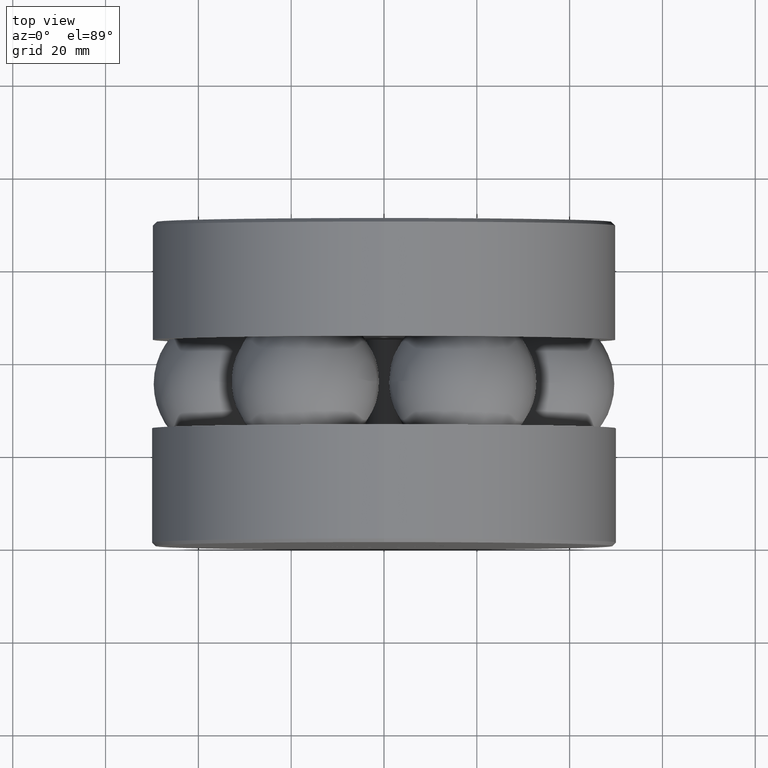
[diagram: clean part render]
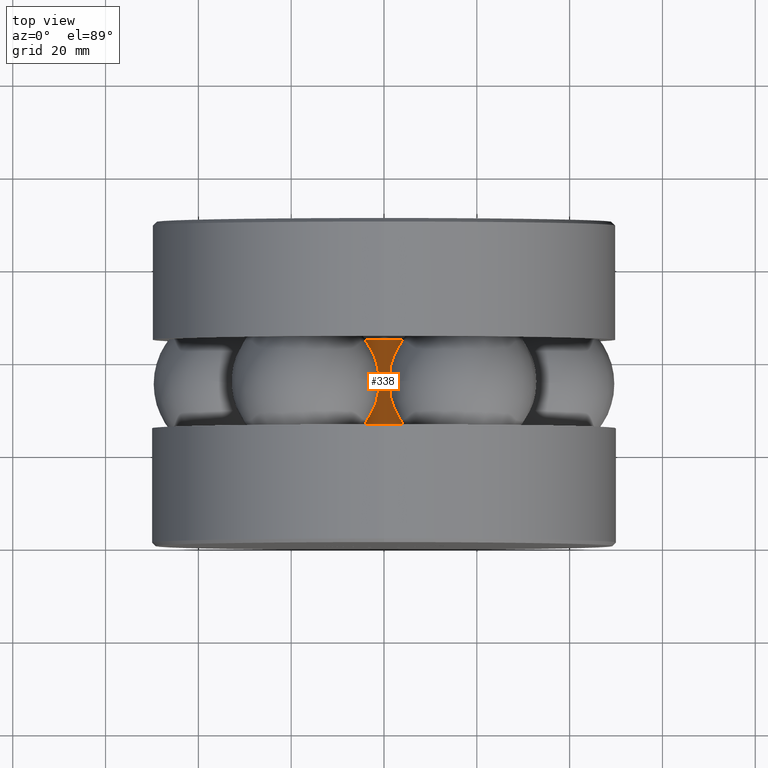
[diagram: same view with one face highlighted and labeled with its STEP entity id]
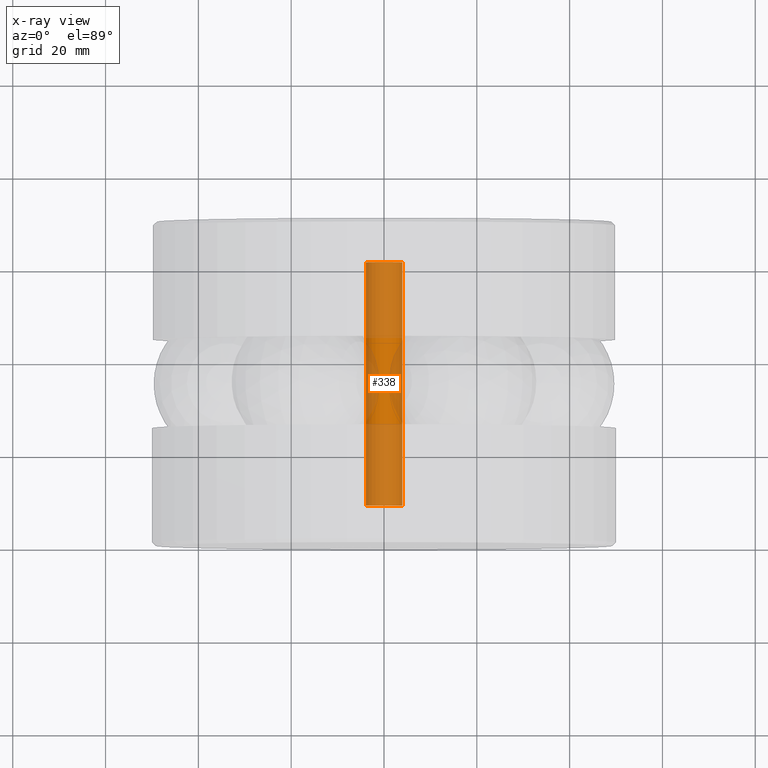
[diagram: x-ray of the same camera — body ghosted, the highlighted face saturated]
A machine part, top view. The second image highlights one B-rep face of the part: STEP entity #338.
The next image is the same camera in x-ray: the body ghosted, the highlighted face saturated — about 81% of this face is hidden behind the body in this view.
In plain terms, the highlighted cylindrical surface (bore or boss wall) has radius 3.9624 mm, axis along (-0, 1, -0).
Its self-contained STEP definition (entity closure, byte-faithful):
#4 = FACE_OUTER_BOUND ( 'NONE', #491, .T. ) ;
#17 = AXIS2_PLACEMENT_3D ( 'NONE', #217, #265, #385 ) ;
#21 = CARTESIAN_POINT ( 'NONE',  ( 0.0000000000000000000, 2.406250000000000000, 0.1560000000000003900 ) ) ;
#35 = CIRCLE ( 'NONE', #193, 0.1560000000000000300 ) ;
#112 = EDGE_CURVE ( 'NONE', #285, #285, #35, .T. ) ;
#113 = DIRECTION ( 'NONE',  ( 0.0000000000000000000, 0.0000000000000000000, 1.000000000000000000 ) ) ;
#134 = CARTESIAN_POINT ( 'NONE',  ( 0.0000000000000000000, 0.3437500000000000000, 0.1560000000000000300 ) ) ;
#157 = DIRECTION ( 'NONE',  ( -0.0000000000000000000, 1.000000000000000000, -0.0000000000000000000 ) ) ;
#190 = ORIENTED_EDGE ( 'NONE', *, *, #112, .T. ) ;
#193 = AXIS2_PLACEMENT_3D ( 'NONE', #230, #529, #278 ) ;
#197 = EDGE_CURVE ( 'NONE', #276, #276, #496, .T. ) ;
#198 = CARTESIAN_POINT ( 'NONE',  ( 0.0000000000000000000, 2.406250000000000000, 0.0000000000000000000 ) ) ;
#217 = CARTESIAN_POINT ( 'NONE',  ( 0.0000000000000000000, 0.0000000000000000000, 0.0000000000000000000 ) ) ;
#230 = CARTESIAN_POINT ( 'NONE',  ( 0.0000000000000000000, 0.3437500000000000000, 0.0000000000000000000 ) ) ;
#265 = DIRECTION ( 'NONE',  ( -0.0000000000000000000, 1.000000000000000000, -0.0000000000000000000 ) ) ;
#276 = VERTEX_POINT ( 'NONE', #21 ) ;
#278 = DIRECTION ( 'NONE',  ( 0.0000000000000000000, 0.0000000000000000000, 1.000000000000000000 ) ) ;
#285 = VERTEX_POINT ( 'NONE', #134 ) ;
#325 = FACE_OUTER_BOUND ( 'NONE', #543, .T. ) ;
#338 = ADVANCED_FACE ( 'NONE', ( #4, #325 ), #546, .T. ) ;
#385 = DIRECTION ( 'NONE',  ( 0.0000000000000000000, 0.0000000000000000000, 1.000000000000000000 ) ) ;
#434 = AXIS2_PLACEMENT_3D ( 'NONE', #198, #157, #113 ) ;
#491 = EDGE_LOOP ( 'NONE', ( #190 ) ) ;
#493 = ORIENTED_EDGE ( 'NONE', *, *, #197, .F. ) ;
#496 = CIRCLE ( 'NONE', #434, 0.1560000000000003900 ) ;
#529 = DIRECTION ( 'NONE',  ( -0.0000000000000000000, 1.000000000000000000, -0.0000000000000000000 ) ) ;
#543 = EDGE_LOOP ( 'NONE', ( #493 ) ) ;
#546 = CYLINDRICAL_SURFACE ( 'NONE', #17, 0.1560000000000001900 ) ;